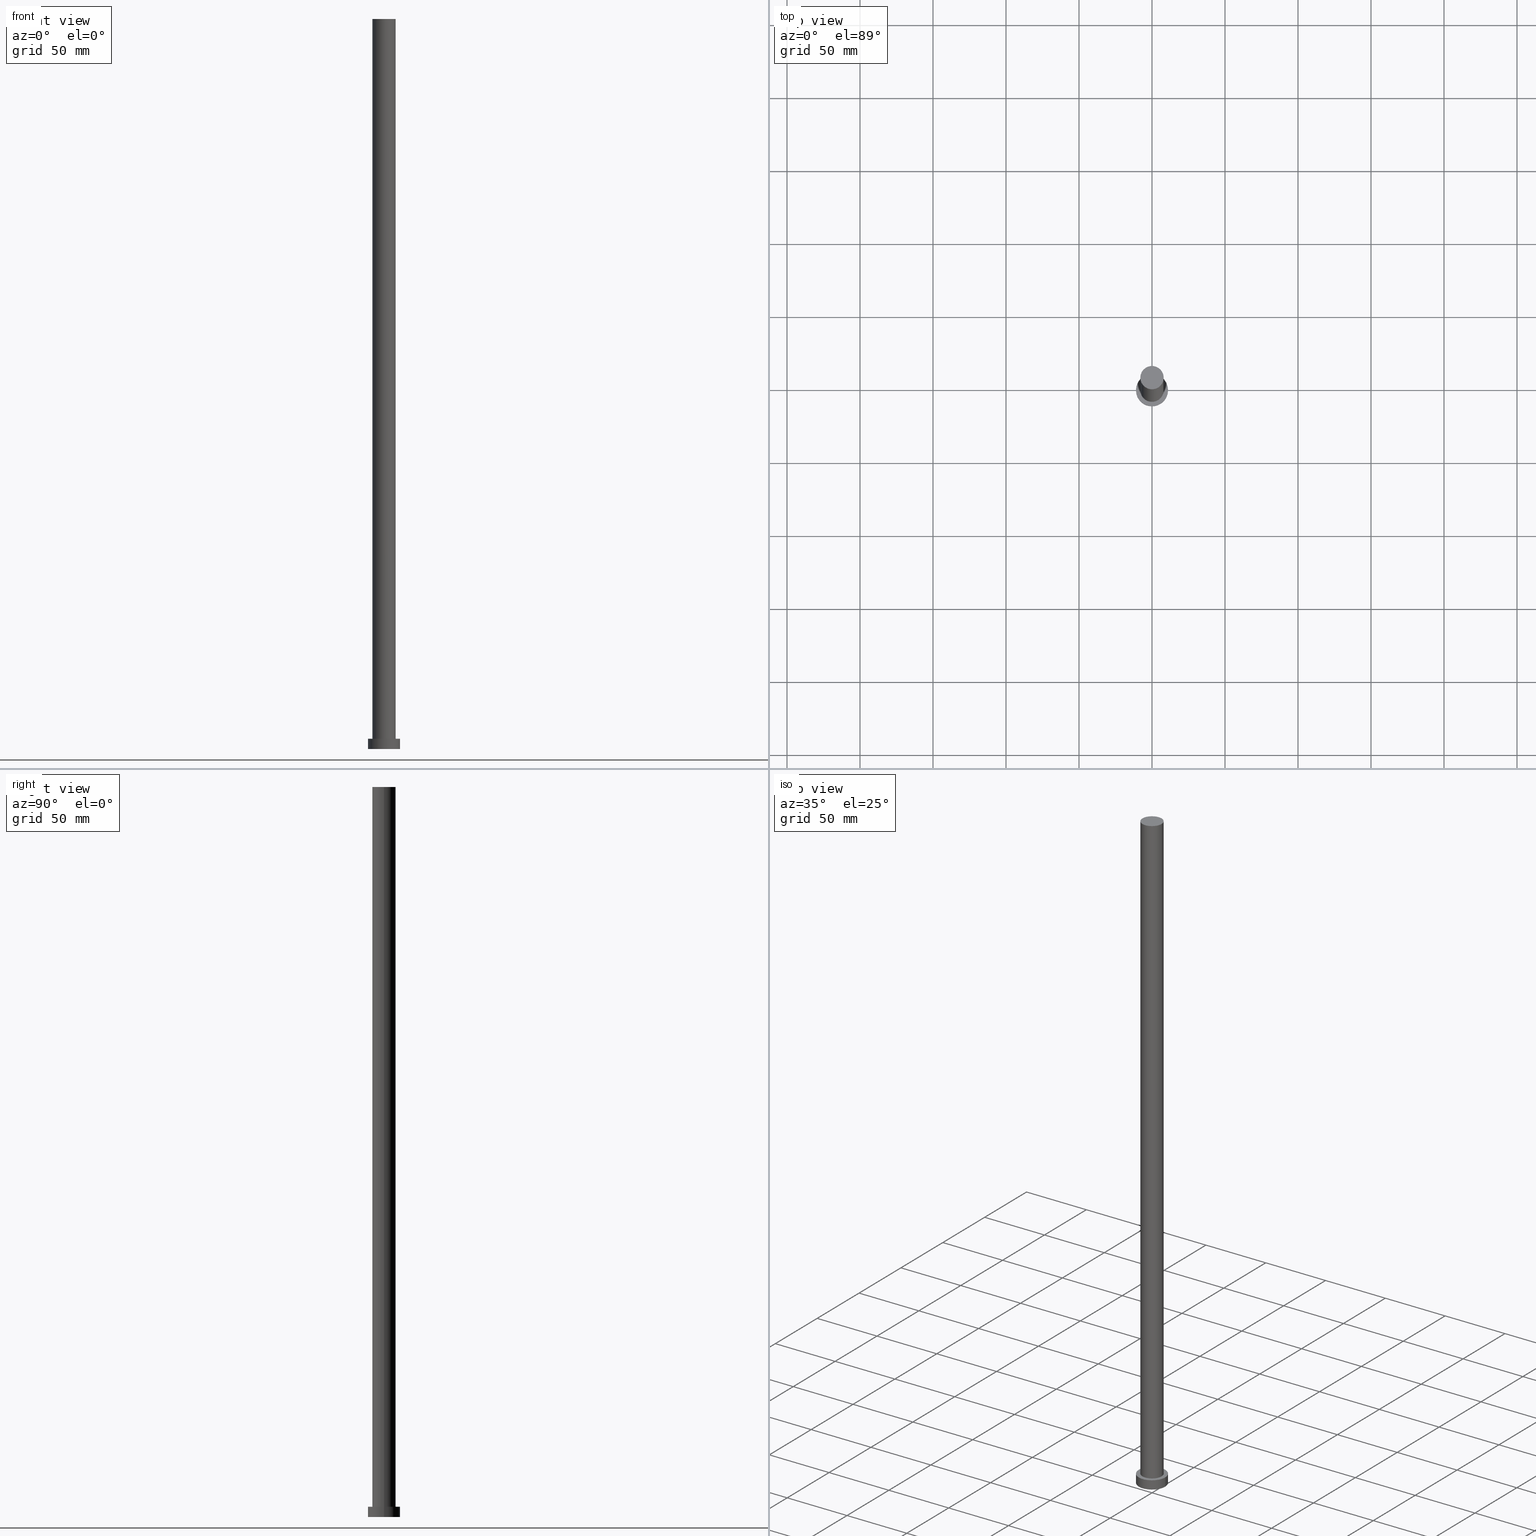
[diagram: canonical four-view strip — front | top / right | iso, engineering-drawing reading convention]
A machine part, canonical four-view strip (front | top / right | iso — engineering-drawing reading convention). The complete STEP part file that produces these views, byte-faithful:
ISO-10303-21;
HEADER;
FILE_DESCRIPTION (( 'STEP AP203' ),
    '1' );
FILE_NAME ('b759.STEP',
    '2023-02-13T09:20:34',
    ( '' ),
    ( '' ),
    'SwSTEP 2.0',
    'SolidWorks 2019',
    '' );
FILE_SCHEMA (( 'CONFIG_CONTROL_DESIGN' ));
ENDSEC;

DATA;
#1 = DIRECTION ( 'NONE',  ( 1.000000000000000000, 0.000000000000000000, 0.000000000000000000 ) ) ;
#2 = PERSON_AND_ORGANIZATION_ROLE ( 'creator' ) ;
#3 = ADVANCED_FACE ( 'NONE', ( #119 ), #235, .T. ) ;
#4 = PRODUCT ( 'b759', 'b759', '', ( #142 ) ) ;
#5 = AXIS2_PLACEMENT_3D ( 'NONE', #78, #203, #187 ) ;
#6 = ORIENTED_EDGE ( 'NONE', *, *, #219, .F. ) ;
#7 = AXIS2_PLACEMENT_3D ( 'NONE', #129, #207, #34 ) ;
#8 = VERTEX_POINT ( 'NONE', #104 ) ;
#9 = DIRECTION ( 'NONE',  ( 1.000000000000000000, 0.000000000000000000, 0.000000000000000000 ) ) ;
#10 = VERTEX_POINT ( 'NONE', #107 ) ;
#11 = LINE ( 'NONE', #167, #91 ) ;
#12 = EDGE_LOOP ( 'NONE', ( #6, #48 ) ) ;
#13 = COORDINATED_UNIVERSAL_TIME_OFFSET ( 1, 0, .AHEAD. ) ;
#14 = EDGE_CURVE ( 'NONE', #10, #61, #25, .T. ) ;
#15 = ORIENTED_EDGE ( 'NONE', *, *, #219, .T. ) ;
#16 = DIRECTION ( 'NONE',  ( -0.000000000000000000, -0.000000000000000000, -1.000000000000000000 ) ) ;
#17 = CARTESIAN_POINT ( 'NONE',  ( 11.00000000000000000, 1.347111479062088405E-15, 7.000000000000000000 ) ) ;
#18 = CIRCLE ( 'NONE', #199, 8.000000000000000000 ) ;
#19 = VERTEX_POINT ( 'NONE', #168 ) ;
#20 = DIRECTION ( 'NONE',  ( -1.000000000000000000, 0.000000000000000000, 0.000000000000000000 ) ) ;
#21 = CARTESIAN_POINT ( 'NONE',  ( -8.000000000000000000, 0.000000000000000000, 500.0000000000000000 ) ) ;
#22 = CARTESIAN_POINT ( 'NONE',  ( -8.000000000000000000, 0.000000000000000000, 7.000000000000000000 ) ) ;
#23 = CARTESIAN_POINT ( 'NONE',  ( 0.000000000000000000, 0.000000000000000000, 0.000000000000000000 ) ) ;
#24 = EDGE_CURVE ( 'NONE', #164, #19, #63, .T. ) ;
#25 = CIRCLE ( 'NONE', #56, 11.00000000000000000 ) ;
#26 = ADVANCED_FACE ( 'NONE', ( #30 ), #92, .T. ) ;
#27 = VECTOR ( 'NONE', #38, 1000.000000000000000 ) ;
#28 =( GEOMETRIC_REPRESENTATION_CONTEXT ( 3 ) GLOBAL_UNCERTAINTY_ASSIGNED_CONTEXT ( ( #204 ) ) GLOBAL_UNIT_ASSIGNED_CONTEXT ( ( #231, #251, #155 ) ) REPRESENTATION_CONTEXT ( 'NONE', 'WORKASPACE' ) );
#29 = CC_DESIGN_APPROVAL ( #36, ( #121 ) ) ;
#30 = FACE_OUTER_BOUND ( 'NONE', #33, .T. ) ;
#31 = EDGE_LOOP ( 'NONE', ( #194, #184, #206, #163 ) ) ;
#32 = CC_DESIGN_PERSON_AND_ORGANIZATION_ASSIGNMENT ( #131, #247, ( #121 ) ) ;
#33 = EDGE_LOOP ( 'NONE', ( #125, #69, #172, #15 ) ) ;
#34 = DIRECTION ( 'NONE',  ( 1.000000000000000000, 0.000000000000000000, -0.000000000000000000 ) ) ;
#35 = APPROVAL_DATE_TIME ( #188, #118 ) ;
#36 = APPROVAL ( #246, 'NEUR�EN�' ) ;
#37 = APPROVAL_ROLE ( '' ) ;
#38 = DIRECTION ( 'NONE',  ( -0.000000000000000000, -0.000000000000000000, -1.000000000000000000 ) ) ;
#39 = SECURITY_CLASSIFICATION ( '', '', #250 ) ;
#40 = DIRECTION ( 'NONE',  ( 0.000000000000000000, 0.000000000000000000, 1.000000000000000000 ) ) ;
#41 = CC_DESIGN_DATE_AND_TIME_ASSIGNMENT ( #82, #209, ( #39 ) ) ;
#42 = CC_DESIGN_APPROVAL ( #230, ( #122 ) ) ;
#43 = APPLICATION_PROTOCOL_DEFINITION ( 'international standard', 'config_control_design', 1994, #70 ) ;
#44 = DIRECTION ( 'NONE',  ( -1.000000000000000000, 0.000000000000000000, 0.000000000000000000 ) ) ;
#45 = APPROVAL_DATE_TIME ( #236, #230 ) ;
#46 = APPROVAL_PERSON_ORGANIZATION ( #128, #36, #73 ) ;
#47 = AXIS2_PLACEMENT_3D ( 'NONE', #191, #62, #249 ) ;
#48 = ORIENTED_EDGE ( 'NONE', *, *, #84, .F. ) ;
#49 = DIRECTION ( 'NONE',  ( -0.000000000000000000, -0.000000000000000000, -1.000000000000000000 ) ) ;
#50 = VERTEX_POINT ( 'NONE', #51 ) ;
#51 = CARTESIAN_POINT ( 'NONE',  ( 8.000000000000000000, 9.797174393178825657E-16, 7.000000000000000000 ) ) ;
#52 = DIRECTION ( 'NONE',  ( -0.000000000000000000, -0.000000000000000000, -1.000000000000000000 ) ) ;
#53 = DATE_AND_TIME ( #116, #136 ) ;
#54 = ADVANCED_FACE ( 'NONE', ( #110, #185 ), #130, .T. ) ;
#55 = MANIFOLD_SOLID_BREP ( 'P�idat vysunut�m3', #252 ) ;
#56 = AXIS2_PLACEMENT_3D ( 'NONE', #159, #89, #239 ) ;
#57 = APPROVAL_STATUS ( 'not_yet_approved' ) ;
#58 = ORIENTED_EDGE ( 'NONE', *, *, #94, .T. ) ;
#59 = DIRECTION ( 'NONE',  ( 1.000000000000000000, 0.000000000000000000, 0.000000000000000000 ) ) ;
#60 = PERSON_AND_ORGANIZATION ( #111, #171 ) ;
#61 = VERTEX_POINT ( 'NONE', #17 ) ;
#62 = DIRECTION ( 'NONE',  ( 0.000000000000000000, 0.000000000000000000, 1.000000000000000000 ) ) ;
#63 = CIRCLE ( 'NONE', #5, 11.00000000000000000 ) ;
#64 = DIRECTION ( 'NONE',  ( 1.000000000000000000, 0.000000000000000000, 0.000000000000000000 ) ) ;
#65 = DIRECTION ( 'NONE',  ( 0.000000000000000000, 0.000000000000000000, 1.000000000000000000 ) ) ;
#66 = DIRECTION ( 'NONE',  ( -1.000000000000000000, 0.000000000000000000, 0.000000000000000000 ) ) ;
#67 = CALENDAR_DATE ( 2023, 13, 2 ) ;
#68 = CC_DESIGN_SECURITY_CLASSIFICATION ( #39, ( #121 ) ) ;
#69 = ORIENTED_EDGE ( 'NONE', *, *, #193, .F. ) ;
#70 = APPLICATION_CONTEXT ( 'configuration controlled 3d designs of mechanical parts and assemblies' ) ;
#71 = FACE_OUTER_BOUND ( 'NONE', #74, .T. ) ;
#72 = AXIS2_PLACEMENT_3D ( 'NONE', #132, #40, #134 ) ;
#73 = APPROVAL_ROLE ( '' ) ;
#74 = EDGE_LOOP ( 'NONE', ( #93, #186 ) ) ;
#75 = FACE_OUTER_BOUND ( 'NONE', #97, .T. ) ;
#76 = VERTEX_POINT ( 'NONE', #22 ) ;
#77 = CARTESIAN_POINT ( 'NONE',  ( 0.000000000000000000, 0.000000000000000000, 500.0000000000000000 ) ) ;
#78 = CARTESIAN_POINT ( 'NONE',  ( 0.000000000000000000, 0.000000000000000000, 0.000000000000000000 ) ) ;
#79 = APPROVAL_DATE_TIME ( #53, #36 ) ;
#80 = LINE ( 'NONE', #21, #205 ) ;
#81 = CC_DESIGN_PERSON_AND_ORGANIZATION_ASSIGNMENT ( #140, #120, ( #4 ) ) ;
#82 = DATE_AND_TIME ( #190, #224 ) ;
#83 = CARTESIAN_POINT ( 'NONE',  ( 0.000000000000000000, 0.000000000000000000, 7.000000000000000000 ) ) ;
#84 = EDGE_CURVE ( 'NONE', #50, #76, #18, .T. ) ;
#85 = DIRECTION ( 'NONE',  ( 0.000000000000000000, 0.000000000000000000, 1.000000000000000000 ) ) ;
#86 = PERSON_AND_ORGANIZATION ( #111, #171 ) ;
#87 = CYLINDRICAL_SURFACE ( 'NONE', #210, 11.00000000000000000 ) ;
#88 = ADVANCED_FACE ( 'NONE', ( #177 ), #87, .T. ) ;
#89 = DIRECTION ( 'NONE',  ( 0.000000000000000000, 0.000000000000000000, 1.000000000000000000 ) ) ;
#90 = ORIENTED_EDGE ( 'NONE', *, *, #106, .T. ) ;
#91 = VECTOR ( 'NONE', #226, 1000.000000000000000 ) ;
#92 = CYLINDRICAL_SURFACE ( 'NONE', #233, 8.000000000000000000 ) ;
#93 = ORIENTED_EDGE ( 'NONE', *, *, #24, .F. ) ;
#94 = EDGE_CURVE ( 'NONE', #144, #8, #240, .T. ) ;
#95 = ORIENTED_EDGE ( 'NONE', *, *, #237, .F. ) ;
#96 = CARTESIAN_POINT ( 'NONE',  ( 8.000000000000000000, 9.797174393178825657E-16, 500.0000000000000000 ) ) ;
#97 = EDGE_LOOP ( 'NONE', ( #95, #174, #212, #241 ) ) ;
#98 = CC_DESIGN_APPROVAL ( #118, ( #39 ) ) ;
#99 = DIRECTION ( 'NONE',  ( 0.000000000000000000, 0.000000000000000000, 1.000000000000000000 ) ) ;
#100 = PERSON_AND_ORGANIZATION_ROLE ( 'classification_officer' ) ;
#101 = PERSON_AND_ORGANIZATION ( #111, #171 ) ;
#102 = EDGE_CURVE ( 'NONE', #61, #19, #11, .T. ) ;
#103 = APPLICATION_PROTOCOL_DEFINITION ( 'international standard', 'config_control_design', 1994, #176 ) ;
#104 = CARTESIAN_POINT ( 'NONE',  ( -8.000000000000000000, 0.000000000000000000, 500.0000000000000000 ) ) ;
#105 = COORDINATED_UNIVERSAL_TIME_OFFSET ( 1, 0, .AHEAD. ) ;
#106 = EDGE_CURVE ( 'NONE', #10, #164, #223, .T. ) ;
#107 = CARTESIAN_POINT ( 'NONE',  ( -11.00000000000000000, 0.000000000000000000, 7.000000000000000000 ) ) ;
#108 = CIRCLE ( 'NONE', #245, 11.00000000000000000 ) ;
#109 = APPROVAL_STATUS ( 'not_yet_approved' ) ;
#110 = FACE_BOUND ( 'NONE', #12, .T. ) ;
#111 = PERSON ( 'NEUR�EN�', 'NEUR�EN�', 'NEUR�EN�', ('NEUR�EN�'), ('NEUR�EN�'), ('NEUR�EN�') ) ;
#112 = DESIGN_CONTEXT ( 'detailed design', #176, 'design' ) ;
#113 = CALENDAR_DATE ( 2023, 13, 2 ) ;
#114 = CARTESIAN_POINT ( 'NONE',  ( 0.000000000000000000, 0.000000000000000000, 0.000000000000000000 ) ) ;
#115 = CC_DESIGN_PERSON_AND_ORGANIZATION_ASSIGNMENT ( #60, #227, ( #121 ) ) ;
#116 = CALENDAR_DATE ( 2023, 13, 2 ) ;
#117 = CARTESIAN_POINT ( 'NONE',  ( 8.000000000000000000, 9.797174393178825657E-16, 500.0000000000000000 ) ) ;
#118 = APPROVAL ( #57, 'NEUR�EN�' ) ;
#119 = FACE_OUTER_BOUND ( 'NONE', #31, .T. ) ;
#120 = PERSON_AND_ORGANIZATION_ROLE ( 'design_owner' ) ;
#121 = PRODUCT_DEFINITION_FORMATION_WITH_SPECIFIED_SOURCE ( 'LIBOVOLN�', '', #4, .NOT_KNOWN. ) ;
#122 = PRODUCT_DEFINITION ( 'NEZN�M�', '', #121, #112 ) ;
#123 = DIRECTION ( 'NONE',  ( 1.000000000000000000, 0.000000000000000000, 0.000000000000000000 ) ) ;
#124 = DATE_AND_TIME ( #67, #175 ) ;
#125 = ORIENTED_EDGE ( 'NONE', *, *, #244, .F. ) ;
#126 = DIRECTION ( 'NONE',  ( -1.000000000000000000, 0.000000000000000000, 0.000000000000000000 ) ) ;
#127 = CIRCLE ( 'NONE', #148, 11.00000000000000000 ) ;
#128 = PERSON_AND_ORGANIZATION ( #111, #171 ) ;
#129 = CARTESIAN_POINT ( 'NONE',  ( 0.000000000000000000, 0.000000000000000000, 0.000000000000000000 ) ) ;
#130 = PLANE ( 'NONE',  #181 ) ;
#131 = PERSON_AND_ORGANIZATION ( #111, #171 ) ;
#132 = CARTESIAN_POINT ( 'NONE',  ( 0.000000000000000000, 0.000000000000000000, 7.000000000000000000 ) ) ;
#133 = COORDINATED_UNIVERSAL_TIME_OFFSET ( 1, 0, .AHEAD. ) ;
#134 = DIRECTION ( 'NONE',  ( 1.000000000000000000, 0.000000000000000000, 0.000000000000000000 ) ) ;
#135 = CARTESIAN_POINT ( 'NONE',  ( 0.000000000000000000, 0.000000000000000000, 7.000000000000000000 ) ) ;
#136 = LOCAL_TIME ( 10, 20, 34.00000000000000000, #151 ) ;
#137 = ADVANCED_FACE ( 'NONE', ( #71 ), #150, .F. ) ;
#138 = ORIENTED_EDGE ( 'NONE', *, *, #14, .T. ) ;
#139 = DIRECTION ( 'NONE',  ( 0.000000000000000000, 0.000000000000000000, 1.000000000000000000 ) ) ;
#140 = PERSON_AND_ORGANIZATION ( #111, #171 ) ;
#141 = DIRECTION ( 'NONE',  ( -0.000000000000000000, -0.000000000000000000, -1.000000000000000000 ) ) ;
#142 = MECHANICAL_CONTEXT ( 'NONE', #70, 'mechanical' ) ;
#143 = AXIS2_PLACEMENT_3D ( 'NONE', #83, #232, #20 ) ;
#144 = VERTEX_POINT ( 'NONE', #96 ) ;
#145 = DIRECTION ( 'NONE',  ( 0.000000000000000000, 0.000000000000000000, 1.000000000000000000 ) ) ;
#146 = LOCAL_TIME ( 10, 20, 34.00000000000000000, #221 ) ;
#147 = EDGE_LOOP ( 'NONE', ( #149, #58 ) ) ;
#148 = AXIS2_PLACEMENT_3D ( 'NONE', #114, #99, #59 ) ;
#149 = ORIENTED_EDGE ( 'NONE', *, *, #193, .T. ) ;
#150 = PLANE ( 'NONE',  #7 ) ;
#151 = COORDINATED_UNIVERSAL_TIME_OFFSET ( 1, 0, .AHEAD. ) ;
#152 = CYLINDRICAL_SURFACE ( 'NONE', #143, 11.00000000000000000 ) ;
#153 = DIRECTION ( 'NONE',  ( 1.000000000000000000, 0.000000000000000000, -0.000000000000000000 ) ) ;
#154 = EDGE_LOOP ( 'NONE', ( #138, #214 ) ) ;
#155 =( NAMED_UNIT ( * ) SI_UNIT ( $, .STERADIAN. ) SOLID_ANGLE_UNIT ( ) );
#156 = CARTESIAN_POINT ( 'NONE',  ( 0.000000000000000000, 0.000000000000000000, 7.000000000000000000 ) ) ;
#157 = CALENDAR_DATE ( 2023, 13, 2 ) ;
#158 = CC_DESIGN_DATE_AND_TIME_ASSIGNMENT ( #124, #166, ( #122 ) ) ;
#159 = CARTESIAN_POINT ( 'NONE',  ( 0.000000000000000000, 0.000000000000000000, 7.000000000000000000 ) ) ;
#160 = DIRECTION ( 'NONE',  ( -0.000000000000000000, -0.000000000000000000, -1.000000000000000000 ) ) ;
#161 = AXIS2_PLACEMENT_3D ( 'NONE', #220, #141, #44 ) ;
#162 = ORIENTED_EDGE ( 'NONE', *, *, #102, .F. ) ;
#163 = ORIENTED_EDGE ( 'NONE', *, *, #213, .F. ) ;
#164 = VERTEX_POINT ( 'NONE', #170 ) ;
#165 = ADVANCED_FACE ( 'NONE', ( #75 ), #152, .T. ) ;
#166 = DATE_TIME_ROLE ( 'creation_date' ) ;
#167 = CARTESIAN_POINT ( 'NONE',  ( 11.00000000000000000, 1.347111479062088405E-15, 7.000000000000000000 ) ) ;
#168 = CARTESIAN_POINT ( 'NONE',  ( 11.00000000000000000, 1.347111479062088405E-15, 0.000000000000000000 ) ) ;
#169 = ORIENTED_EDGE ( 'NONE', *, *, #14, .F. ) ;
#170 = CARTESIAN_POINT ( 'NONE',  ( -11.00000000000000000, 0.000000000000000000, 0.000000000000000000 ) ) ;
#171 = ORGANIZATION ( 'NEUR�EN�', 'NEUR�EN�', '' ) ;
#172 = ORIENTED_EDGE ( 'NONE', *, *, #213, .T. ) ;
#173 = SHAPE_DEFINITION_REPRESENTATION ( #180, #216 ) ;
#174 = ORIENTED_EDGE ( 'NONE', *, *, #102, .T. ) ;
#175 = LOCAL_TIME ( 10, 20, 34.00000000000000000, #105 ) ;
#176 = APPLICATION_CONTEXT ( 'configuration controlled 3d designs of mechanical parts and assemblies' ) ;
#177 = FACE_OUTER_BOUND ( 'NONE', #196, .T. ) ;
#178 = PERSON_AND_ORGANIZATION ( #111, #171 ) ;
#179 = APPROVAL_PERSON_ORGANIZATION ( #86, #230, #254 ) ;
#180 = PRODUCT_DEFINITION_SHAPE ( 'NONE', 'NONE',  #122 ) ;
#181 = AXIS2_PLACEMENT_3D ( 'NONE', #208, #139, #189 ) ;
#182 = AXIS2_PLACEMENT_3D ( 'NONE', #77, #228, #153 ) ;
#183 = CC_DESIGN_PERSON_AND_ORGANIZATION_ASSIGNMENT ( #178, #2, ( #122 ) ) ;
#184 = ORIENTED_EDGE ( 'NONE', *, *, #244, .T. ) ;
#185 = FACE_OUTER_BOUND ( 'NONE', #154, .T. ) ;
#186 = ORIENTED_EDGE ( 'NONE', *, *, #218, .F. ) ;
#187 = DIRECTION ( 'NONE',  ( 1.000000000000000000, 0.000000000000000000, 0.000000000000000000 ) ) ;
#188 = DATE_AND_TIME ( #113, #202 ) ;
#189 = DIRECTION ( 'NONE',  ( 1.000000000000000000, 0.000000000000000000, -0.000000000000000000 ) ) ;
#190 = CALENDAR_DATE ( 2023, 13, 2 ) ;
#191 = CARTESIAN_POINT ( 'NONE',  ( 0.000000000000000000, 0.000000000000000000, 500.0000000000000000 ) ) ;
#192 = DIRECTION ( 'NONE',  ( 0.000000000000000000, 0.000000000000000000, 1.000000000000000000 ) ) ;
#193 = EDGE_CURVE ( 'NONE', #8, #144, #217, .T. ) ;
#194 = ORIENTED_EDGE ( 'NONE', *, *, #94, .F. ) ;
#195 = PERSON_AND_ORGANIZATION ( #111, #171 ) ;
#196 = EDGE_LOOP ( 'NONE', ( #162, #169, #90, #222 ) ) ;
#197 = PRODUCT_RELATED_PRODUCT_CATEGORY ( 'detail', '', ( #4 ) ) ;
#198 = VECTOR ( 'NONE', #52, 1000.000000000000000 ) ;
#199 = AXIS2_PLACEMENT_3D ( 'NONE', #135, #192, #123 ) ;
#200 = ADVANCED_FACE ( 'NONE', ( #215 ), #248, .T. ) ;
#201 = CARTESIAN_POINT ( 'NONE',  ( 0.000000000000000000, 0.000000000000000000, 7.000000000000000000 ) ) ;
#202 = LOCAL_TIME ( 10, 20, 34.00000000000000000, #13 ) ;
#203 = DIRECTION ( 'NONE',  ( 0.000000000000000000, 0.000000000000000000, 1.000000000000000000 ) ) ;
#204 = UNCERTAINTY_MEASURE_WITH_UNIT (LENGTH_MEASURE( 1.000000000000000082E-05 ), #231, 'distance_accuracy_value', 'NONE');
#205 = VECTOR ( 'NONE', #16, 1000.000000000000000 ) ;
#206 = ORIENTED_EDGE ( 'NONE', *, *, #84, .T. ) ;
#207 = DIRECTION ( 'NONE',  ( 0.000000000000000000, 0.000000000000000000, 1.000000000000000000 ) ) ;
#208 = CARTESIAN_POINT ( 'NONE',  ( 0.000000000000000000, 0.000000000000000000, 7.000000000000000000 ) ) ;
#209 = DATE_TIME_ROLE ( 'classification_date' ) ;
#210 = AXIS2_PLACEMENT_3D ( 'NONE', #201, #160, #66 ) ;
#211 = LINE ( 'NONE', #117, #27 ) ;
#212 = ORIENTED_EDGE ( 'NONE', *, *, #218, .T. ) ;
#213 = EDGE_CURVE ( 'NONE', #8, #76, #80, .T. ) ;
#214 = ORIENTED_EDGE ( 'NONE', *, *, #237, .T. ) ;
#215 = FACE_OUTER_BOUND ( 'NONE', #147, .T. ) ;
#216 = ADVANCED_BREP_SHAPE_REPRESENTATION ( 'b759', ( #55, #255 ), #28 ) ;
#217 = CIRCLE ( 'NONE', #47, 8.000000000000000000 ) ;
#218 = EDGE_CURVE ( 'NONE', #19, #164, #127, .T. ) ;
#219 = EDGE_CURVE ( 'NONE', #76, #50, #253, .T. ) ;
#220 = CARTESIAN_POINT ( 'NONE',  ( 0.000000000000000000, 0.000000000000000000, 500.0000000000000000 ) ) ;
#221 = COORDINATED_UNIVERSAL_TIME_OFFSET ( 1, 0, .AHEAD. ) ;
#222 = ORIENTED_EDGE ( 'NONE', *, *, #24, .T. ) ;
#223 = LINE ( 'NONE', #243, #198 ) ;
#224 = LOCAL_TIME ( 10, 20, 34.00000000000000000, #133 ) ;
#225 = CARTESIAN_POINT ( 'NONE',  ( 0.000000000000000000, 0.000000000000000000, 500.0000000000000000 ) ) ;
#226 = DIRECTION ( 'NONE',  ( -0.000000000000000000, -0.000000000000000000, -1.000000000000000000 ) ) ;
#227 = PERSON_AND_ORGANIZATION_ROLE ( 'creator' ) ;
#228 = DIRECTION ( 'NONE',  ( 0.000000000000000000, 0.000000000000000000, 1.000000000000000000 ) ) ;
#229 = AXIS2_PLACEMENT_3D ( 'NONE', #242, #145, #9 ) ;
#230 = APPROVAL ( #109, 'NEUR�EN�' ) ;
#231 =( LENGTH_UNIT ( ) NAMED_UNIT ( * ) SI_UNIT ( .MILLI., .METRE. ) );
#232 = DIRECTION ( 'NONE',  ( -0.000000000000000000, -0.000000000000000000, -1.000000000000000000 ) ) ;
#233 = AXIS2_PLACEMENT_3D ( 'NONE', #225, #49, #126 ) ;
#234 = APPROVAL_PERSON_ORGANIZATION ( #101, #118, #37 ) ;
#235 = CYLINDRICAL_SURFACE ( 'NONE', #161, 8.000000000000000000 ) ;
#236 = DATE_AND_TIME ( #157, #146 ) ;
#237 = EDGE_CURVE ( 'NONE', #61, #10, #108, .T. ) ;
#238 = CC_DESIGN_PERSON_AND_ORGANIZATION_ASSIGNMENT ( #195, #100, ( #39 ) ) ;
#239 = DIRECTION ( 'NONE',  ( 1.000000000000000000, 0.000000000000000000, 0.000000000000000000 ) ) ;
#240 = CIRCLE ( 'NONE', #229, 8.000000000000000000 ) ;
#241 = ORIENTED_EDGE ( 'NONE', *, *, #106, .F. ) ;
#242 = CARTESIAN_POINT ( 'NONE',  ( 0.000000000000000000, 0.000000000000000000, 500.0000000000000000 ) ) ;
#243 = CARTESIAN_POINT ( 'NONE',  ( -11.00000000000000000, 0.000000000000000000, 7.000000000000000000 ) ) ;
#244 = EDGE_CURVE ( 'NONE', #144, #50, #211, .T. ) ;
#245 = AXIS2_PLACEMENT_3D ( 'NONE', #156, #65, #64 ) ;
#246 = APPROVAL_STATUS ( 'not_yet_approved' ) ;
#247 = PERSON_AND_ORGANIZATION_ROLE ( 'design_supplier' ) ;
#248 = PLANE ( 'NONE',  #182 ) ;
#249 = DIRECTION ( 'NONE',  ( 1.000000000000000000, 0.000000000000000000, 0.000000000000000000 ) ) ;
#250 = SECURITY_CLASSIFICATION_LEVEL ( 'unclassified' ) ;
#251 =( NAMED_UNIT ( * ) PLANE_ANGLE_UNIT ( ) SI_UNIT ( $, .RADIAN. ) );
#252 = CLOSED_SHELL ( 'NONE', ( #3, #165, #88, #54, #137, #26, #200 ) ) ;
#253 = CIRCLE ( 'NONE', #72, 8.000000000000000000 ) ;
#254 = APPROVAL_ROLE ( '' ) ;
#255 = AXIS2_PLACEMENT_3D ( 'NONE', #23, #85, #1 ) ;
ENDSEC;
END-ISO-10303-21;
